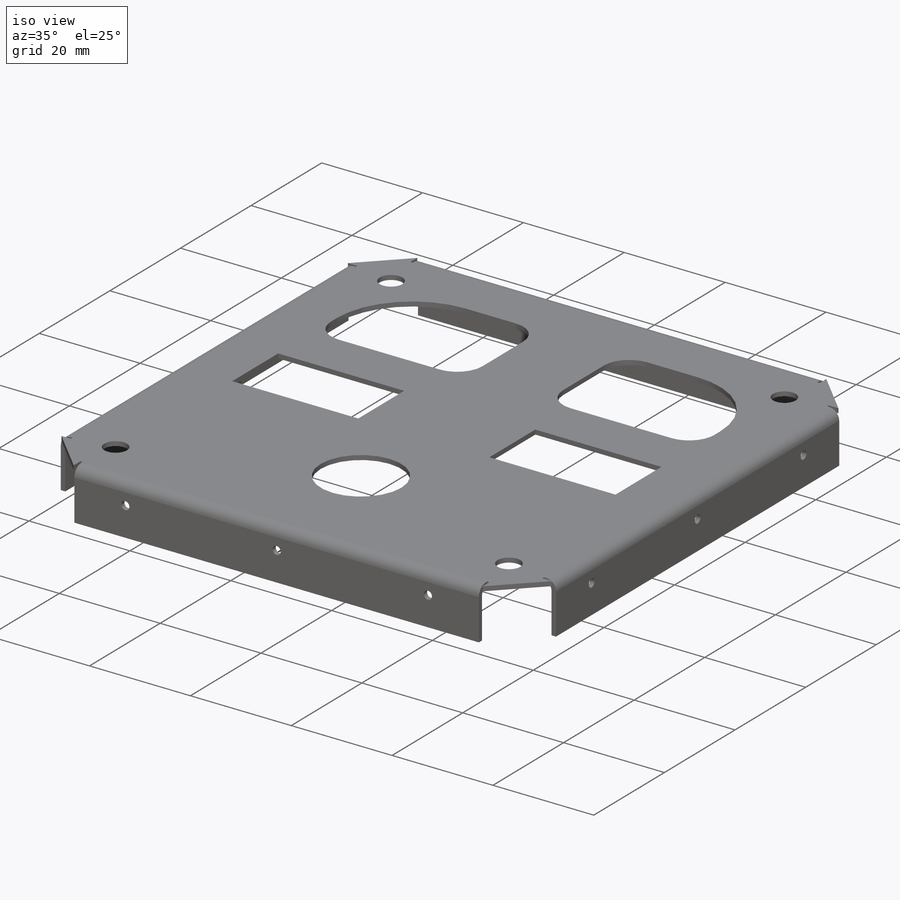
[diagram: iso view]
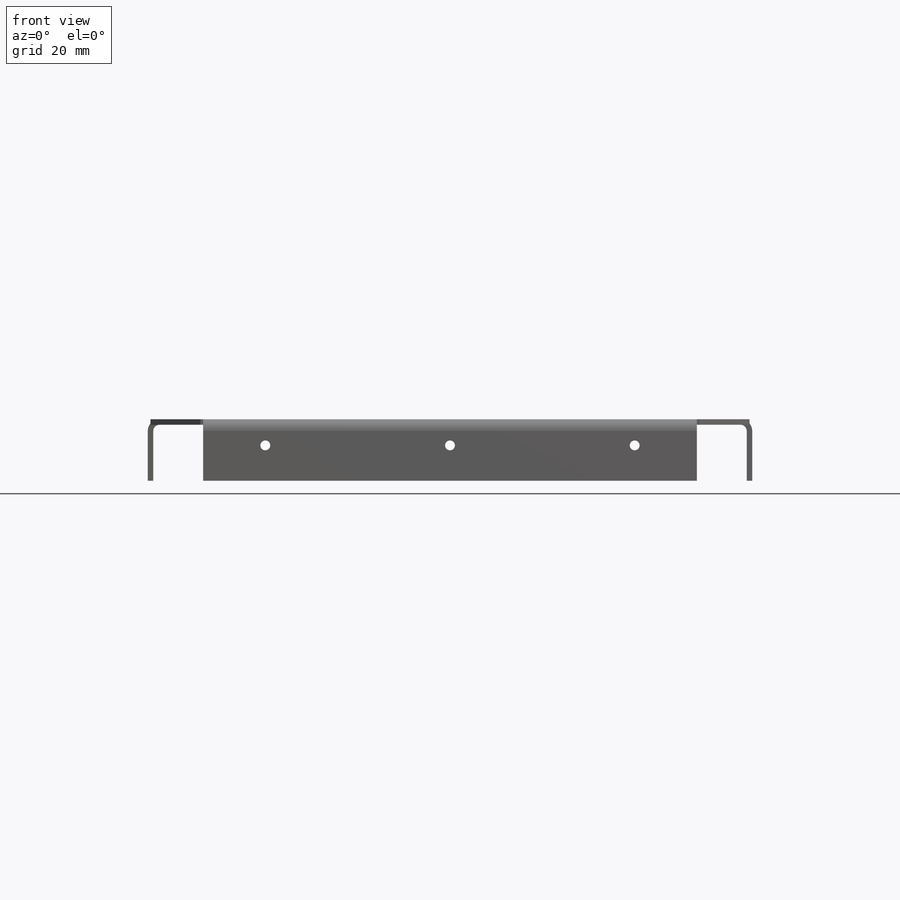
[diagram: front view]
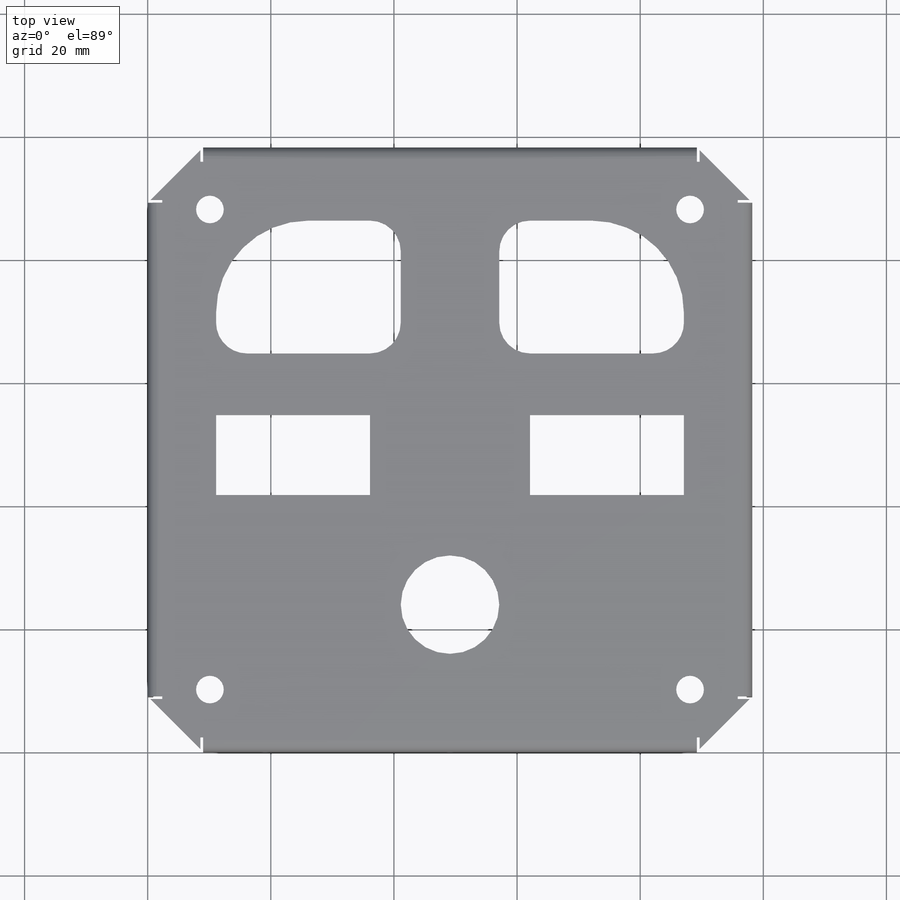
[diagram: top view]
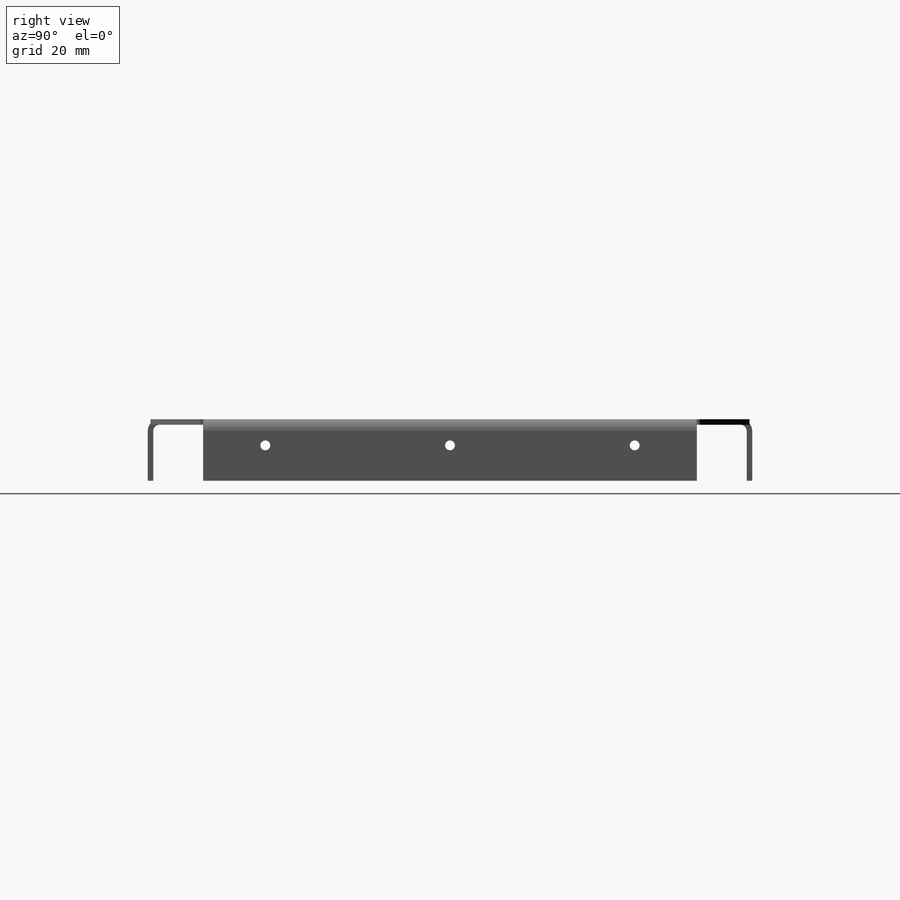
[diagram: right view]
SOLIDWORKS PART (.sldprt)
format: sldprt  version: not decoded by parser v0  size: 1,332,224 bytes
history: native  units: mm
features: sketch x34, sheet_metal_op x12, thread x12, hole x5, material x1, cut_extrude x1 + 8 further entries (+13 scaffold rows collapsed; 8 parser-record rows omitted)
feature tree (94):
  scaffold x13  (default folders/planes/origin — collapsed)
  material  "6061 Alloy"
  sketch  "Sketch1"  dims[c1.D1=98.2mm c1.D2=98.2mm c1.D3=9.0mm c1.D4=9.0mm c1.D5=9.0mm c1.D6=9.0mm c2.D1=98.2mm c2.D2=98.2mm c2.D6=9.0mm c2.D3=9.0mm c2.D4=9.0mm c2.D5=9.0mm c2.D7=43.5mm c2.D8=56.5mm c2.D9=13.0mm c2.D10=38.0mm c3.D1=1.0mm c3.D2=0.5 c3.D3=0.0mm c3.D6=500.0mm]
  sheet_metal_op  "Base-Flange1"
  sketch  "Sketch14"
  sketch  "Sketch15"
  sketch  "Sketch16"
  sketch  "Sketch17"  dims[D1=1.0mm D4=90.0deg D5=1.0 D8=0.45mm D9=0.45mm]
  sheet_metal_op  "EdgeBend2"
  sheet_metal_op  "EdgeBend3"
  sheet_metal_op  "EdgeBend4"
  sketch  "Sketch18"  dims[c1.D7=5.0mm c1.D8=15.0mm c1.D9=15.0mm c1.D10=12.0mm c1.D4=16.0mm c1.D1=10.0mm c1.D2=10.0mm c1.D3=~6.244963mm c2.D4=10.0mm c2.D5=10.0mm c2.D6=8.0mm c2.D7=~6.755037mm c2.D3=8.0mm c3.D5=22.0mm]
  cut_extrude  "Cut-Extrude1"  Depth=10mm
  hole  "M2x0.4 Tapped Hole1"  [1 undecoded]
  sketch  "Sketch21"
  thread  "Hole Thread1"  Diameter=0.9mm  [1 undecoded]
  thread  "Hole Thread2"  Diameter=0.9mm  [1 undecoded]
  thread  "Hole Thread3"  Diameter=0.9mm  [1 undecoded]
  sketch  "Sketch22"  dims[hole-wizard template sketch: 47 standard entries collapsed; hole parameters kept: c15.Tap Drill Depth=5.2mm c15.D3=~14.816244mm c15.Drill Angle=118.0deg]
  hole  "M2x0.4 Tapped Hole2"  Diameter=1.6mm Depth=5.2mm
  sketch  "Sketch23"
  sketch  "Sketch24"  dims[hole-wizard template sketch: 47 standard entries collapsed; hole parameters kept: c15.Tap Drill Depth=5.2mm c15.D3=~14.816244mm c15.Drill Angle=118.0deg]
  thread  "Hole Thread4"  Diameter=0.9mm  [1 undecoded]
  thread  "Hole Thread5"  Diameter=0.9mm  [1 undecoded]
  thread  "Hole Thread6"  Diameter=0.9mm  [1 undecoded]
  hole  "M2x0.4 Tapped Hole3"  Diameter=1.6mm Depth=5.2mm
  sketch  "Sketch25"
  sketch  "Sketch26"  dims[hole-wizard template sketch: 47 standard entries collapsed; hole parameters kept: c15.Tap Drill Depth=5.2mm c15.D3=~14.816244mm c15.Drill Angle=118.0deg]
  thread  "Hole Thread7"  Diameter=0.9mm  [1 undecoded]
  thread  "Hole Thread8"  Diameter=0.9mm  [1 undecoded]
  thread  "Hole Thread9"  Diameter=0.9mm  [1 undecoded]
  hole  "M2x0.4 Tapped Hole4"  Diameter=1.6mm Depth=5.2mm
  sketch  "Sketch27"
  sketch  "Sketch28"  dims[hole-wizard template sketch: 47 standard entries collapsed; hole parameters kept: c15.Tap Drill Depth=5.2mm c15.D3=~14.816244mm c15.Drill Angle=118.0deg]
  thread  "Hole Thread10"  Diameter=0.9mm  [1 undecoded]
  thread  "Hole Thread11"  Diameter=0.9mm  [1 undecoded]
  thread  "Hole Thread12"  Diameter=0.9mm  [1 undecoded]
  hole  "M4 Clearance Hole1"  Diameter=4.5mm Depth=10mm
  sketch  "Sketch29"
  sketch  "Sketch30"  dims[Thru Hole Dia.=4.5mm Thru Hole Depth=10.0mm]
  sketch  "Bend-Lines1"
  sketch  "Bounding-Box1"
  sheet_metal_op  "Sheet-Metal1"
  "Flat-Pattern1"
  sketch  "Bend-Lines2"
  sketch  "Bounding-Box2"
  parser-record x8  (decoder bookkeeping rows leaked as tree rows — omitted from the tree; the rows remain in map.json)
  sheet_metal_op  "Sheet-Metal2"
  "Flat-Pattern1"
  sketch  "Bend-Lines2"
  sketch  "Bounding-Box2"
  sheet_metal_op  "Sheet-Metal3"
  "Flat-Pattern1"
  sketch  "Bend-Lines2"
  sketch  "Bounding-Box2"
  sheet_metal_op  "Sheet-Metal5"
  "Flat-Pattern1"
  sketch  "Bend-Lines2"
  sketch  "Bounding-Box2"
  sheet_metal_op  "Sheet-Metal6"
  "Flat-Pattern1"
  sketch  "Bend-Lines2"
  sketch  "Bounding-Box2"
  sheet_metal_op  "Sheet-Metal7"
  "Flat-Pattern1"
  sketch  "Bend-Lines2"
  sketch  "Bounding-Box2"
  sheet_metal_op  "Sheet-Metal8"
  "Flat-Pattern1"
  sketch  "Bend-Lines2"
  sketch  "Bounding-Box2"
  sheet_metal_op  "Sheet-Metal9"
  "Flat-Pattern1"
  sketch  "Bend-Lines2"
  sketch  "Bounding-Box2"
decode coverage: 25 of 64 modeling features carry decoded parameters; 8 rows unclassified (native names shown)
note: ~ marks probable driven/reference dimensions
note: 13 parameter values undecoded
summary: Diameter pulled from absorbed wizard sketch
note: suppression state not decoded; provenance and decode notes live in map.json
